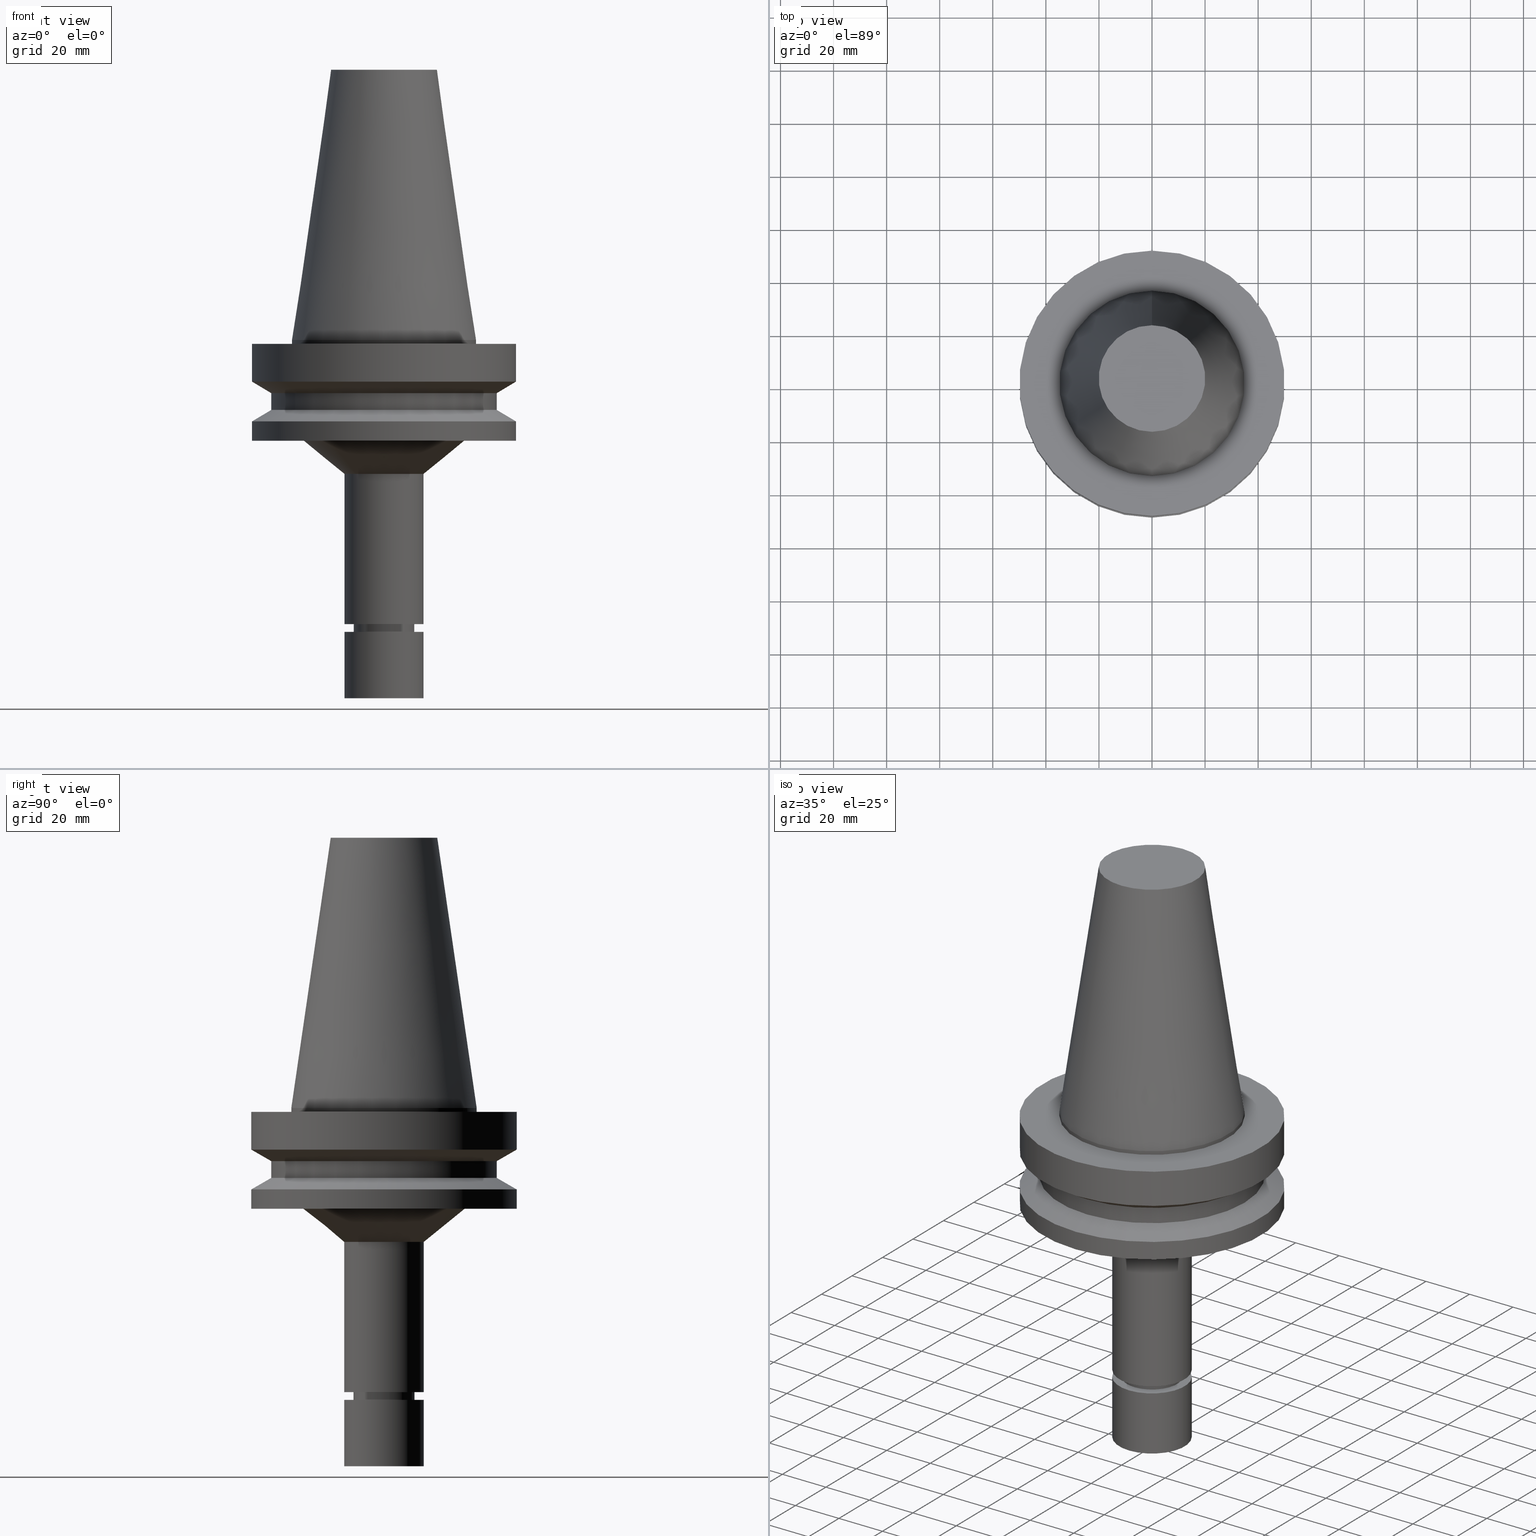
[diagram: canonical four-view strip — front | top / right | iso, engineering-drawing reading convention]
A machine part, canonical four-view strip (front | top / right | iso — engineering-drawing reading convention). The complete STEP part file that produces these views, byte-faithful:
ISO-10303-21;
HEADER;
FILE_DESCRIPTION((''),'1');
FILE_NAME('V:/90_\X2\53D65F9730C730FC30BF\X0\/00_\X2\6DE18DEF30C730FC30BF\X0\/ALL/BBT-BKUS\X2\FF76FF80FF9BFF78FF9E752852A05DE556F3\X0\201801/BBT50-MEGAER/BBT50-MEGAER16-135NL.stp','2018-02-02T07:52:08',(''),(''),'Spatial Interop R21 SP3','Kubotek KeyCreator 2011 V10.0.2 (22737)',' ');
FILE_SCHEMA(('automotive_design'));
ENDSEC;
DATA;
#1=MECHANICAL_DESIGN_GEOMETRIC_PRESENTATION_REPRESENTATION(' ',(#14,#15,#16,#17,#18,#19,#20,#21,#22,#23,#24,#25,#26,#27,#28,#29,#30,#31,#32,#33,#34,#35,#36,#37,#38,#39,#40,#41,#42,#43,#44,#45,#46,#47,#48,#49,#50,#51,#52,#53,#54,#55),#10);
#2=PRODUCT_DEFINITION_CONTEXT('',#56,'design');
#3=APPLICATION_PROTOCOL_DEFINITION('INTERNATIONAL STANDARD','automotive_design',1994,#56);
#4=PRODUCT_CATEGORY_RELATIONSHIP('NONE','NONE',#57,#58);
#5=SHAPE_DEFINITION_REPRESENTATION(#59,#60);
#6=PRODUCT_DEFINITION_CONTEXT('',#61,'design');
#7=APPLICATION_PROTOCOL_DEFINITION('INTERNATIONAL STANDARD','automotive_design',1994,#61);
#8=PRODUCT_CATEGORY_RELATIONSHIP('NONE','NONE',#62,#63);
#9=SHAPE_DEFINITION_REPRESENTATION(#64,#65);
#10= (GEOMETRIC_REPRESENTATION_CONTEXT(3)GLOBAL_UNCERTAINTY_ASSIGNED_CONTEXT((#68))GLOBAL_UNIT_ASSIGNED_CONTEXT((#70,#71,#72))REPRESENTATION_CONTEXT('NONE','WORKSPACE'));
#14=STYLED_ITEM('',(#74,#75),#76);
#15=STYLED_ITEM('',(#77,#78),#79);
#16=STYLED_ITEM('',(#80),#81);
#17=STYLED_ITEM('',(#82),#83);
#18=STYLED_ITEM('',(#84),#85);
#19=STYLED_ITEM('',(#86,#87),#88);
#20=STYLED_ITEM('',(#89),#90);
#21=STYLED_ITEM('',(#91,#92),#93);
#22=STYLED_ITEM('',(#94,#95),#96);
#23=STYLED_ITEM('',(#97,#98),#99);
#24=STYLED_ITEM('',(#100,#101),#102);
#25=STYLED_ITEM('',(#103,#104),#105);
#26=STYLED_ITEM('',(#106,#107),#108);
#27=STYLED_ITEM('',(#109),#110);
#28=STYLED_ITEM('',(#111,#112),#113);
#29=STYLED_ITEM('',(#114,#115),#116);
#30=STYLED_ITEM('',(#117,#118),#119);
#31=STYLED_ITEM('',(#120,#121),#122);
#32=STYLED_ITEM('',(#123),#124);
#33=STYLED_ITEM('',(#125),#126);
#34=STYLED_ITEM('',(#127,#128),#129);
#35=STYLED_ITEM('',(#130),#131);
#36=STYLED_ITEM('',(#132,#133),#134);
#37=STYLED_ITEM('',(#135,#136),#137);
#38=STYLED_ITEM('',(#138),#139);
#39=STYLED_ITEM('',(#140),#141);
#40=STYLED_ITEM('',(#142),#143);
#41=STYLED_ITEM('',(#144),#145);
#42=STYLED_ITEM('',(#146),#147);
#43=STYLED_ITEM('',(#148),#149);
#44=STYLED_ITEM('',(#150,#151),#152);
#45=STYLED_ITEM('',(#153,#154),#155);
#46=STYLED_ITEM('',(#156,#157),#158);
#47=STYLED_ITEM('',(#159),#160);
#48=STYLED_ITEM('',(#161,#162),#163);
#49=STYLED_ITEM('',(#164,#165),#166);
#50=STYLED_ITEM('',(#167),#168);
#51=STYLED_ITEM('',(#169,#170),#171);
#52=STYLED_ITEM('',(#172),#173);
#53=STYLED_ITEM('',(#174),#175);
#54=STYLED_ITEM('',(#176),#177);
#55=STYLED_ITEM('',(#178,#179),#180);
#56=APPLICATION_CONTEXT(' ');
#57=PRODUCT_CATEGORY('part','NONE');
#58=PRODUCT_RELATED_PRODUCT_CATEGORY('detail',' ',(#181));
#59=PRODUCT_DEFINITION_SHAPE('NONE','NONE',#182);
#60=ADVANCED_BREP_SHAPE_REPRESENTATION('Unnamed[1]',(#129,#183),#10);
#61=APPLICATION_CONTEXT(' ');
#62=PRODUCT_CATEGORY('part','NONE');
#63=PRODUCT_RELATED_PRODUCT_CATEGORY('detail',' ',(#184));
#64=PRODUCT_DEFINITION_SHAPE('NONE','NONE',#185);
#65=ADVANCED_BREP_SHAPE_REPRESENTATION('Unnamed[1]',(#105,#186),#10);
#68=UNCERTAINTY_MEASURE_WITH_UNIT(LENGTH_MEASURE(1.0E-006),#70,'','');
#70= (CONVERSION_BASED_UNIT('MILLIMETRE',#189)LENGTH_UNIT()NAMED_UNIT(#192));
#71= (NAMED_UNIT(#194)PLANE_ANGLE_UNIT()SI_UNIT($,.RADIAN.));
#72= (NAMED_UNIT(#194)SOLID_ANGLE_UNIT()SI_UNIT($,.STERADIAN.));
#74=PRESENTATION_STYLE_ASSIGNMENT((#200));
#75=PRESENTATION_STYLE_ASSIGNMENT((#201));
#76=ADVANCED_FACE('Unnamed[1]',(#202),#203,.T.);
#77=PRESENTATION_STYLE_ASSIGNMENT((#204));
#78=PRESENTATION_STYLE_ASSIGNMENT((#205));
#79=ADVANCED_FACE('Unnamed[1]',(#206,#207),#208,.T.);
#80=PRESENTATION_STYLE_ASSIGNMENT((#209));
#81=EDGE_CURVE('Unnamed[1]',#210,#210,#211,.T.);
#82=PRESENTATION_STYLE_ASSIGNMENT((#212));
#83=EDGE_CURVE('Unnamed[1]',#213,#213,#214,.T.);
#84=PRESENTATION_STYLE_ASSIGNMENT((#215));
#85=EDGE_CURVE('Unnamed[1]',#216,#216,#217,.T.);
#86=PRESENTATION_STYLE_ASSIGNMENT((#218));
#87=PRESENTATION_STYLE_ASSIGNMENT((#219));
#88=ADVANCED_FACE('Unnamed[1]',(#220,#221),#222,.T.);
#89=PRESENTATION_STYLE_ASSIGNMENT((#223));
#90=EDGE_CURVE('Unnamed[1]',#224,#224,#225,.T.);
#91=PRESENTATION_STYLE_ASSIGNMENT((#226));
#92=PRESENTATION_STYLE_ASSIGNMENT((#227));
#93=ADVANCED_FACE('Unnamed[1]',(#228,#229),#230,.T.);
#94=PRESENTATION_STYLE_ASSIGNMENT((#231));
#95=PRESENTATION_STYLE_ASSIGNMENT((#232));
#96=ADVANCED_FACE('Unnamed[1]',(#233,#234),#235,.T.);
#97=PRESENTATION_STYLE_ASSIGNMENT((#236));
#98=PRESENTATION_STYLE_ASSIGNMENT((#237));
#99=ADVANCED_FACE('Unnamed[1]',(#238,#239),#240,.T.);
#100=PRESENTATION_STYLE_ASSIGNMENT((#241));
#101=PRESENTATION_STYLE_ASSIGNMENT((#242));
#102=ADVANCED_FACE('Unnamed[1]',(#243,#244),#245,.T.);
#103=PRESENTATION_STYLE_ASSIGNMENT((#246));
#104=PRESENTATION_STYLE_ASSIGNMENT((#247));
#105=MANIFOLD_SOLID_BREP('Unnamed[1]',#248);
#106=PRESENTATION_STYLE_ASSIGNMENT((#249));
#107=PRESENTATION_STYLE_ASSIGNMENT((#250));
#108=ADVANCED_FACE('Unnamed[1]',(#251),#252,.T.);
#109=PRESENTATION_STYLE_ASSIGNMENT((#253));
#110=EDGE_CURVE('Unnamed[1]',#254,#254,#255,.T.);
#111=PRESENTATION_STYLE_ASSIGNMENT((#256));
#112=PRESENTATION_STYLE_ASSIGNMENT((#257));
#113=ADVANCED_FACE('Unnamed[1]',(#258,#259),#260,.T.);
#114=PRESENTATION_STYLE_ASSIGNMENT((#261));
#115=PRESENTATION_STYLE_ASSIGNMENT((#262));
#116=ADVANCED_FACE('Unnamed[1]',(#263,#264),#265,.T.);
#117=PRESENTATION_STYLE_ASSIGNMENT((#266));
#118=PRESENTATION_STYLE_ASSIGNMENT((#267));
#119=ADVANCED_FACE('Unnamed[1]',(#268,#269),#270,.T.);
#120=PRESENTATION_STYLE_ASSIGNMENT((#271));
#121=PRESENTATION_STYLE_ASSIGNMENT((#272));
#122=ADVANCED_FACE('Unnamed[1]',(#273,#274),#275,.T.);
#123=PRESENTATION_STYLE_ASSIGNMENT((#276));
#124=EDGE_CURVE('Unnamed[1]',#277,#277,#278,.T.);
#125=PRESENTATION_STYLE_ASSIGNMENT((#279));
#126=EDGE_CURVE('Unnamed[1]',#280,#280,#281,.T.);
#127=PRESENTATION_STYLE_ASSIGNMENT((#282));
#128=PRESENTATION_STYLE_ASSIGNMENT((#283));
#129=MANIFOLD_SOLID_BREP('Unnamed[1]',#284);
#130=PRESENTATION_STYLE_ASSIGNMENT((#285));
#131=EDGE_CURVE('Unnamed[1]',#286,#286,#287,.T.);
#132=PRESENTATION_STYLE_ASSIGNMENT((#288));
#133=PRESENTATION_STYLE_ASSIGNMENT((#289));
#134=ADVANCED_FACE('Unnamed[1]',(#290),#291,.T.);
#135=PRESENTATION_STYLE_ASSIGNMENT((#292));
#136=PRESENTATION_STYLE_ASSIGNMENT((#293));
#137=ADVANCED_FACE('Unnamed[1]',(#294,#295),#296,.T.);
#138=PRESENTATION_STYLE_ASSIGNMENT((#297));
#139=EDGE_CURVE('Unnamed[1]',#298,#298,#299,.T.);
#140=PRESENTATION_STYLE_ASSIGNMENT((#300));
#141=EDGE_CURVE('Unnamed[1]',#301,#301,#302,.T.);
#142=PRESENTATION_STYLE_ASSIGNMENT((#303));
#143=EDGE_CURVE('Unnamed[1]',#304,#304,#305,.T.);
#144=PRESENTATION_STYLE_ASSIGNMENT((#306));
#145=EDGE_CURVE('Unnamed[1]',#307,#307,#308,.T.);
#146=PRESENTATION_STYLE_ASSIGNMENT((#309));
#147=EDGE_CURVE('Unnamed[1]',#310,#310,#311,.T.);
#148=PRESENTATION_STYLE_ASSIGNMENT((#312));
#149=EDGE_CURVE('Unnamed[1]',#313,#313,#314,.T.);
#150=PRESENTATION_STYLE_ASSIGNMENT((#315));
#151=PRESENTATION_STYLE_ASSIGNMENT((#316));
#152=ADVANCED_FACE('Unnamed[1]',(#317,#318),#319,.T.);
#153=PRESENTATION_STYLE_ASSIGNMENT((#320));
#154=PRESENTATION_STYLE_ASSIGNMENT((#321));
#155=ADVANCED_FACE('Unnamed[1]',(#322),#323,.T.);
#156=PRESENTATION_STYLE_ASSIGNMENT((#324));
#157=PRESENTATION_STYLE_ASSIGNMENT((#325));
#158=ADVANCED_FACE('Unnamed[1]',(#326,#327),#328,.T.);
#159=PRESENTATION_STYLE_ASSIGNMENT((#329));
#160=EDGE_CURVE('Unnamed[1]',#330,#330,#331,.T.);
#161=PRESENTATION_STYLE_ASSIGNMENT((#332));
#162=PRESENTATION_STYLE_ASSIGNMENT((#333));
#163=ADVANCED_FACE('Unnamed[1]',(#334,#335),#336,.T.);
#164=PRESENTATION_STYLE_ASSIGNMENT((#337));
#165=PRESENTATION_STYLE_ASSIGNMENT((#338));
#166=ADVANCED_FACE('Unnamed[1]',(#339,#340),#341,.T.);
#167=PRESENTATION_STYLE_ASSIGNMENT((#342));
#168=EDGE_CURVE('Unnamed[1]',#343,#343,#344,.T.);
#169=PRESENTATION_STYLE_ASSIGNMENT((#345));
#170=PRESENTATION_STYLE_ASSIGNMENT((#346));
#171=ADVANCED_FACE('Unnamed[1]',(#347,#348),#349,.T.);
#172=PRESENTATION_STYLE_ASSIGNMENT((#350));
#173=EDGE_CURVE('Unnamed[1]',#351,#351,#352,.T.);
#174=PRESENTATION_STYLE_ASSIGNMENT((#353));
#175=EDGE_CURVE('Unnamed[1]',#354,#354,#355,.T.);
#176=PRESENTATION_STYLE_ASSIGNMENT((#356));
#177=EDGE_CURVE('Unnamed[1]',#357,#357,#358,.T.);
#178=PRESENTATION_STYLE_ASSIGNMENT((#359));
#179=PRESENTATION_STYLE_ASSIGNMENT((#360));
#180=ADVANCED_FACE('Unnamed[1]',(#361,#362),#363,.T.);
#181=PRODUCT('Unnamed[1]','Unnamed[1]','PART-Unnamed[1]-DESC',(#364));
#182=PRODUCT_DEFINITION('NONE','NONE',#365,#2);
#183=AXIS2_PLACEMENT_3D('',#366,#367,#368);
#184=PRODUCT('Unnamed[1]','Unnamed[1]','PART-Unnamed[1]-DESC',(#369));
#185=PRODUCT_DEFINITION('NONE','NONE',#370,#6);
#186=AXIS2_PLACEMENT_3D('',#371,#372,#373);
#189=LENGTH_MEASURE_WITH_UNIT(LENGTH_MEASURE(1.0),#374);
#192=DIMENSIONAL_EXPONENTS(1.0,0.0,0.0,0.0,0.0,0.0,0.0);
#194=DIMENSIONAL_EXPONENTS(0.0,0.0,0.0,0.0,0.0,0.0,0.0);
#200=SURFACE_STYLE_USAGE(.BOTH.,#375);
#201=CURVE_STYLE('',#376,POSITIVE_LENGTH_MEASURE(1000.0),#377);
#202=FACE_OUTER_BOUND('',#378,.T.);
#203=PLANE('',#379);
#204=SURFACE_STYLE_USAGE(.BOTH.,#380);
#205=CURVE_STYLE('',#381,POSITIVE_LENGTH_MEASURE(1000.0),#382);
#206=FACE_BOUND('',#383,.T.);
#207=FACE_BOUND('',#384,.T.);
#208=CYLINDRICAL_SURFACE('',#385,15.0000000000002);
#209=CURVE_STYLE('',#386,POSITIVE_LENGTH_MEASURE(1000.0),#387);
#210=VERTEX_POINT('',#388);
#211=CIRCLE('',#389,50.0);
#212=CURVE_STYLE('',#390,POSITIVE_LENGTH_MEASURE(1000.0),#391);
#213=VERTEX_POINT('',#392);
#214=CIRCLE('',#393,34.925);
#215=CURVE_STYLE('',#394,POSITIVE_LENGTH_MEASURE(1000.0),#395);
#216=VERTEX_POINT('',#396);
#217=CIRCLE('',#397,20.0791666651884);
#218=SURFACE_STYLE_USAGE(.BOTH.,#398);
#219=CURVE_STYLE('',#399,POSITIVE_LENGTH_MEASURE(1000.0),#400);
#220=FACE_BOUND('',#401,.T.);
#221=FACE_BOUND('',#402,.T.);
#222=CYLINDRICAL_SURFACE('',#403,34.925);
#223=CURVE_STYLE('',#404,POSITIVE_LENGTH_MEASURE(1000.0),#405);
#224=VERTEX_POINT('',#406);
#225=CIRCLE('',#407,50.0);
#226=SURFACE_STYLE_USAGE(.BOTH.,#408);
#227=CURVE_STYLE('',#409,POSITIVE_LENGTH_MEASURE(1000.0),#410);
#228=FACE_BOUND('',#411,.T.);
#229=FACE_BOUND('',#412,.T.);
#230=CONICAL_SURFACE('',#413,10.4499999999999,0.523598775598224);
#231=SURFACE_STYLE_USAGE(.BOTH.,#414);
#232=CURVE_STYLE('',#415,POSITIVE_LENGTH_MEASURE(1000.0),#416);
#233=FACE_BOUND('',#417,.T.);
#234=FACE_BOUND('',#418,.T.);
#235=CYLINDRICAL_SURFACE('',#419,15.0);
#236=SURFACE_STYLE_USAGE(.BOTH.,#420);
#237=CURVE_STYLE('',#421,POSITIVE_LENGTH_MEASURE(1000.0),#422);
#238=FACE_BOUND('',#423,.T.);
#239=FACE_BOUND('',#424,.T.);
#240=CYLINDRICAL_SURFACE('',#425,11.0000000000001);
#241=SURFACE_STYLE_USAGE(.BOTH.,#426);
#242=CURVE_STYLE('',#427,POSITIVE_LENGTH_MEASURE(1000.0),#428);
#243=FACE_BOUND('',#429,.T.);
#244=FACE_BOUND('',#430,.T.);
#245=CYLINDRICAL_SURFACE('',#431,42.5);
#246=SURFACE_STYLE_USAGE(.BOTH.,#432);
#247=CURVE_STYLE('',#433,POSITIVE_LENGTH_MEASURE(1000.0),#434);
#248=CLOSED_SHELL('',(#134,#108,#96));
#249=SURFACE_STYLE_USAGE(.BOTH.,#435);
#250=CURVE_STYLE('',#436,POSITIVE_LENGTH_MEASURE(1000.0),#437);
#251=FACE_OUTER_BOUND('',#438,.T.);
#252=PLANE('',#439);
#253=CURVE_STYLE('',#440,POSITIVE_LENGTH_MEASURE(1000.0),#441);
#254=VERTEX_POINT('',#442);
#255=CIRCLE('',#443,15.0000000000002);
#256=SURFACE_STYLE_USAGE(.BOTH.,#444);
#257=CURVE_STYLE('',#445,POSITIVE_LENGTH_MEASURE(1000.0),#446);
#258=FACE_BOUND('',#447,.T.);
#259=FACE_BOUND('',#448,.T.);
#260=CONICAL_SURFACE('',#449,22.6818898842099,0.889162048815192);
#261=SURFACE_STYLE_USAGE(.BOTH.,#450);
#262=CURVE_STYLE('',#451,POSITIVE_LENGTH_MEASURE(1000.0),#452);
#263=FACE_BOUND('',#453,.T.);
#264=FACE_BOUND('',#454,.T.);
#265=CYLINDRICAL_SURFACE('',#455,11.4999999999964);
#266=SURFACE_STYLE_USAGE(.BOTH.,#456);
#267=CURVE_STYLE('',#457,POSITIVE_LENGTH_MEASURE(1000.0),#458);
#268=FACE_BOUND('',#459,.T.);
#269=FACE_BOUND('',#460,.T.);
#270=CONICAL_SURFACE('',#461,27.5020833325942,0.144812498253157);
#271=SURFACE_STYLE_USAGE(.BOTH.,#462);
#272=CURVE_STYLE('',#463,POSITIVE_LENGTH_MEASURE(1000.0),#464);
#273=FACE_BOUND('',#465,.T.);
#274=FACE_BOUND('',#466,.T.);
#275=CONICAL_SURFACE('',#467,46.25,1.04719755108882);
#276=CURVE_STYLE('',#468,POSITIVE_LENGTH_MEASURE(1000.0),#469);
#277=VERTEX_POINT('',#470);
#278=CIRCLE('',#471,50.0);
#279=CURVE_STYLE('',#472,POSITIVE_LENGTH_MEASURE(1000.0),#473);
#280=VERTEX_POINT('',#474);
#281=CIRCLE('',#475,9.89999999999961);
#282=SURFACE_STYLE_USAGE(.BOTH.,#476);
#283=CURVE_STYLE('',#477,POSITIVE_LENGTH_MEASURE(1000.0),#478);
#284=CLOSED_SHELL('',(#76,#93,#99,#158,#116,#163,#79,#113,#171,#180,#122,#102,#137,#166,#152,#88,#119,#155));
#285=CURVE_STYLE('',#479,POSITIVE_LENGTH_MEASURE(1000.0),#480);
#286=VERTEX_POINT('',#481);
#287=CIRCLE('',#482,42.5);
#288=SURFACE_STYLE_USAGE(.BOTH.,#483);
#289=CURVE_STYLE('',#484,POSITIVE_LENGTH_MEASURE(1000.0),#485);
#290=FACE_OUTER_BOUND('',#486,.T.);
#291=PLANE('',#487);
#292=SURFACE_STYLE_USAGE(.BOTH.,#488);
#293=CURVE_STYLE('',#489,POSITIVE_LENGTH_MEASURE(1000.0),#490);
#294=FACE_BOUND('',#491,.T.);
#295=FACE_BOUND('',#492,.T.);
#296=CONICAL_SURFACE('',#493,46.25,1.04719755108882);
#297=CURVE_STYLE('',#494,POSITIVE_LENGTH_MEASURE(1000.0),#495);
#298=VERTEX_POINT('',#496);
#299=CIRCLE('',#497,50.0);
#300=CURVE_STYLE('',#498,POSITIVE_LENGTH_MEASURE(1000.0),#499);
#301=VERTEX_POINT('',#500);
#302=CIRCLE('',#501,15.0000000000001);
#303=CURVE_STYLE('',#502,POSITIVE_LENGTH_MEASURE(1000.0),#503);
#304=VERTEX_POINT('',#504);
#305=CIRCLE('',#505,42.5);
#306=CURVE_STYLE('',#506,POSITIVE_LENGTH_MEASURE(1000.0),#507);
#307=VERTEX_POINT('',#508);
#308=CIRCLE('',#509,11.0000000000002);
#309=CURVE_STYLE('',#510,POSITIVE_LENGTH_MEASURE(1000.0),#511);
#310=VERTEX_POINT('',#512);
#311=CIRCLE('',#513,11.4999999999907);
#312=CURVE_STYLE('',#514,POSITIVE_LENGTH_MEASURE(1000.0),#515);
#313=VERTEX_POINT('',#516);
#314=CIRCLE('',#517,34.925);
#315=SURFACE_STYLE_USAGE(.BOTH.,#518);
#316=CURVE_STYLE('',#519,POSITIVE_LENGTH_MEASURE(1000.0),#520);
#317=FACE_BOUND('',#521,.T.);
#318=FACE_OUTER_BOUND('',#522,.T.);
#319=PLANE('',#523);
#320=SURFACE_STYLE_USAGE(.BOTH.,#524);
#321=CURVE_STYLE('',#525,POSITIVE_LENGTH_MEASURE(1000.0),#526);
#322=FACE_OUTER_BOUND('',#527,.T.);
#323=PLANE('',#528);
#324=SURFACE_STYLE_USAGE(.BOTH.,#529);
#325=CURVE_STYLE('',#530,POSITIVE_LENGTH_MEASURE(1000.0),#531);
#326=FACE_BOUND('',#532,.T.);
#327=FACE_BOUND('',#533,.T.);
#328=CONICAL_SURFACE('',#534,11.250000000001,1.04719755118896);
#329=CURVE_STYLE('',#535,POSITIVE_LENGTH_MEASURE(1000.0),#536);
#330=VERTEX_POINT('',#537);
#331=CIRCLE('',#538,15.0000000000001);
#332=SURFACE_STYLE_USAGE(.BOTH.,#539);
#333=CURVE_STYLE('',#540,POSITIVE_LENGTH_MEASURE(1000.0),#541);
#334=FACE_OUTER_BOUND('',#542,.T.);
#335=FACE_BOUND('',#543,.T.);
#336=PLANE('',#544);
#337=SURFACE_STYLE_USAGE(.BOTH.,#545);
#338=CURVE_STYLE('',#546,POSITIVE_LENGTH_MEASURE(1000.0),#547);
#339=FACE_BOUND('',#548,.T.);
#340=FACE_BOUND('',#549,.T.);
#341=CYLINDRICAL_SURFACE('',#550,50.0);
#342=CURVE_STYLE('',#551,POSITIVE_LENGTH_MEASURE(1000.0),#552);
#343=VERTEX_POINT('',#553);
#344=CIRCLE('',#554,30.3637797684196);
#345=SURFACE_STYLE_USAGE(.BOTH.,#555);
#346=CURVE_STYLE('',#556,POSITIVE_LENGTH_MEASURE(1000.0),#557);
#347=FACE_OUTER_BOUND('',#558,.T.);
#348=FACE_BOUND('',#559,.T.);
#349=PLANE('',#560);
#350=CURVE_STYLE('',#561,POSITIVE_LENGTH_MEASURE(1000.0),#562);
#351=VERTEX_POINT('',#563);
#352=CIRCLE('',#564,11.5000000000021);
#353=CURVE_STYLE('',#565,POSITIVE_LENGTH_MEASURE(1000.0),#566);
#354=VERTEX_POINT('',#567);
#355=CIRCLE('',#568,15.0);
#356=CURVE_STYLE('',#569,POSITIVE_LENGTH_MEASURE(1000.0),#570);
#357=VERTEX_POINT('',#571);
#358=CIRCLE('',#572,10.9999999999999);
#359=SURFACE_STYLE_USAGE(.BOTH.,#573);
#360=CURVE_STYLE('',#574,POSITIVE_LENGTH_MEASURE(1000.0),#575);
#361=FACE_BOUND('',#576,.T.);
#362=FACE_BOUND('',#577,.T.);
#363=CYLINDRICAL_SURFACE('',#578,50.0);
#364=PRODUCT_CONTEXT('',#56,'mechanical');
#365=PRODUCT_DEFINITION_FORMATION_WITH_SPECIFIED_SOURCE(' ','NONE',#181,.NOT_KNOWN.);
#366=CARTESIAN_POINT('',(0.0,0.0,0.0));
#367=DIRECTION('',(0.0,0.0,1.0));
#368=DIRECTION('',(1.0,0.0,0.0));
#369=PRODUCT_CONTEXT('',#61,'mechanical');
#370=PRODUCT_DEFINITION_FORMATION_WITH_SPECIFIED_SOURCE(' ','NONE',#184,.NOT_KNOWN.);
#371=CARTESIAN_POINT('',(0.0,0.0,0.0));
#372=DIRECTION('',(0.0,0.0,1.0));
#373=DIRECTION('',(1.0,0.0,0.0));
#374= (NAMED_UNIT(#192)LENGTH_UNIT()SI_UNIT(.MILLI.,.METRE.));
#375=SURFACE_SIDE_STYLE('',(#580));
#376=DRAUGHTING_PRE_DEFINED_CURVE_FONT('continuous');
#377=COLOUR_RGB('',0.0,1.0,0.0);
#378=EDGE_LOOP('',(#581));
#379=AXIS2_PLACEMENT_3D('',#582,#583,#584);
#380=SURFACE_SIDE_STYLE('',(#585));
#381=DRAUGHTING_PRE_DEFINED_CURVE_FONT('continuous');
#382=COLOUR_RGB('',0.0,1.0,0.0);
#383=EDGE_LOOP('',(#586));
#384=EDGE_LOOP('',(#587));
#385=AXIS2_PLACEMENT_3D('',#588,#589,#590);
#386=DRAUGHTING_PRE_DEFINED_CURVE_FONT('continuous');
#387=COLOUR_RGB('',0.0,1.0,0.0);
#388=CARTESIAN_POINT('',(9.61347737330674E-016,50.0,-15.7));
#389=AXIS2_PLACEMENT_3D('',#591,#592,#593);
#390=DRAUGHTING_PRE_DEFINED_CURVE_FONT('continuous');
#391=COLOUR_RGB('',0.0,1.0,0.0);
#392=CARTESIAN_POINT('',(9.18485099360511E-017,34.925,-1.5));
#393=AXIS2_PLACEMENT_3D('',#594,#595,#596);
#394=DRAUGHTING_PRE_DEFINED_CURVE_FONT('continuous');
#395=COLOUR_RGB('',0.0,1.0,0.0);
#396=CARTESIAN_POINT('',(-6.23345220766003E-015,20.0791666651884,101.8));
#397=AXIS2_PLACEMENT_3D('',#597,#598,#599);
#398=SURFACE_SIDE_STYLE('',(#600));
#399=DRAUGHTING_PRE_DEFINED_CURVE_FONT('continuous');
#400=COLOUR_RGB('',0.0,1.0,0.0);
#401=EDGE_LOOP('',(#601));
#402=EDGE_LOOP('',(#602));
#403=AXIS2_PLACEMENT_3D('',#603,#604,#605);
#404=DRAUGHTING_PRE_DEFINED_CURVE_FONT('continuous');
#405=COLOUR_RGB('',0.0,1.0,0.0);
#406=CARTESIAN_POINT('',(1.87983283669119E-015,50.0,-30.7000000000001));
#407=AXIS2_PLACEMENT_3D('',#606,#607,#608);
#408=SURFACE_SIDE_STYLE('',(#609));
#409=DRAUGHTING_PRE_DEFINED_CURVE_FONT('continuous');
#410=COLOUR_RGB('',0.0,1.0,0.0);
#411=EDGE_LOOP('',(#610));
#412=EDGE_LOOP('',(#611));
#413=AXIS2_PLACEMENT_3D('',#612,#613,#614);
#414=SURFACE_SIDE_STYLE('',(#615));
#415=DRAUGHTING_PRE_DEFINED_CURVE_FONT('continuous');
#416=COLOUR_RGB('',0.0,1.0,0.0);
#417=EDGE_LOOP('',(#616));
#418=EDGE_LOOP('',(#617));
#419=AXIS2_PLACEMENT_3D('',#618,#619,#620);
#420=SURFACE_SIDE_STYLE('',(#621));
#421=DRAUGHTING_PRE_DEFINED_CURVE_FONT('continuous');
#422=COLOUR_RGB('',0.0,1.0,0.0);
#423=EDGE_LOOP('',(#622));
#424=EDGE_LOOP('',(#623));
#425=AXIS2_PLACEMENT_3D('',#624,#625,#626);
#426=SURFACE_SIDE_STYLE('',(#627));
#427=DRAUGHTING_PRE_DEFINED_CURVE_FONT('continuous');
#428=COLOUR_RGB('',0.0,1.0,0.0);
#429=EDGE_LOOP('',(#628));
#430=EDGE_LOOP('',(#629));
#431=AXIS2_PLACEMENT_3D('',#630,#631,#632);
#432=SURFACE_SIDE_STYLE('',(#633));
#433=DRAUGHTING_PRE_DEFINED_CURVE_FONT('continuous');
#434=COLOUR_RGB('',0.0,1.0,0.0);
#435=SURFACE_SIDE_STYLE('',(#634));
#436=DRAUGHTING_PRE_DEFINED_CURVE_FONT('continuous');
#437=COLOUR_RGB('',0.0,1.0,0.0);
#438=EDGE_LOOP('',(#635));
#439=AXIS2_PLACEMENT_3D('',#636,#637,#638);
#440=DRAUGHTING_PRE_DEFINED_CURVE_FONT('continuous');
#441=COLOUR_RGB('',0.0,1.0,0.0);
#442=CARTESIAN_POINT('',(6.55798360943403E-015,15.0000000000002,-107.099999999999));
#443=AXIS2_PLACEMENT_3D('',#639,#640,#641);
#444=SURFACE_SIDE_STYLE('',(#642));
#445=DRAUGHTING_PRE_DEFINED_CURVE_FONT('continuous');
#446=COLOUR_RGB('',0.0,1.0,0.0);
#447=EDGE_LOOP('',(#643));
#448=EDGE_LOOP('',(#644));
#449=AXIS2_PLACEMENT_3D('',#645,#646,#647);
#450=SURFACE_SIDE_STYLE('',(#648));
#451=DRAUGHTING_PRE_DEFINED_CURVE_FONT('continuous');
#452=COLOUR_RGB('',0.0,1.0,0.0);
#453=EDGE_LOOP('',(#649));
#454=EDGE_LOOP('',(#650));
#455=AXIS2_PLACEMENT_3D('',#651,#652,#653);
#456=SURFACE_SIDE_STYLE('',(#654));
#457=DRAUGHTING_PRE_DEFINED_CURVE_FONT('continuous');
#458=COLOUR_RGB('',0.0,1.0,0.0);
#459=EDGE_LOOP('',(#655));
#460=EDGE_LOOP('',(#656));
#461=AXIS2_PLACEMENT_3D('',#657,#658,#659);
#462=SURFACE_SIDE_STYLE('',(#660));
#463=DRAUGHTING_PRE_DEFINED_CURVE_FONT('continuous');
#464=COLOUR_RGB('',0.0,1.0,0.0);
#465=EDGE_LOOP('',(#661));
#466=EDGE_LOOP('',(#662));
#467=AXIS2_PLACEMENT_3D('',#663,#664,#665);
#468=DRAUGHTING_PRE_DEFINED_CURVE_FONT('continuous');
#469=COLOUR_RGB('',0.0,1.0,0.0);
#470=CARTESIAN_POINT('',(9.18485099360509E-017,50.0,-1.49999999999999));
#471=AXIS2_PLACEMENT_3D('',#666,#667,#668);
#472=DRAUGHTING_PRE_DEFINED_CURVE_FONT('continuous');
#473=COLOUR_RGB('',0.0,1.0,0.0);
#474=CARTESIAN_POINT('',(7.72752130261974E-015,9.89999999999963,-126.199999999999));
#475=AXIS2_PLACEMENT_3D('',#669,#670,#671);
#476=SURFACE_SIDE_STYLE('',(#672));
#477=DRAUGHTING_PRE_DEFINED_CURVE_FONT('continuous');
#478=COLOUR_RGB('',0.0,1.0,0.0);
#479=DRAUGHTING_PRE_DEFINED_CURVE_FONT('continuous');
#480=COLOUR_RGB('',0.0,1.0,0.0);
#481=CARTESIAN_POINT('',(1.2264915470779E-015,42.5,-20.03012702));
#482=AXIS2_PLACEMENT_3D('',#673,#674,#675);
#483=SURFACE_SIDE_STYLE('',(#676));
#484=DRAUGHTING_PRE_DEFINED_CURVE_FONT('continuous');
#485=COLOUR_RGB('',0.0,1.0,0.0);
#486=EDGE_LOOP('',(#677));
#487=AXIS2_PLACEMENT_3D('',#678,#679,#680);
#488=SURFACE_SIDE_STYLE('',(#681));
#489=DRAUGHTING_PRE_DEFINED_CURVE_FONT('continuous');
#490=COLOUR_RGB('',0.0,1.0,0.0);
#491=EDGE_LOOP('',(#682));
#492=EDGE_LOOP('',(#683));
#493=AXIS2_PLACEMENT_3D('',#684,#685,#686);
#494=DRAUGHTING_PRE_DEFINED_CURVE_FONT('continuous');
#495=COLOUR_RGB('',0.0,1.0,0.0);
#496=CARTESIAN_POINT('',(2.32682891837996E-015,50.0,-37.9999999999998));
#497=AXIS2_PLACEMENT_3D('',#687,#688,#689);
#498=DRAUGHTING_PRE_DEFINED_CURVE_FONT('continuous');
#499=COLOUR_RGB('',0.0,1.0,0.0);
#500=CARTESIAN_POINT('',(6.73555739531044E-015,15.0000000000001,-110.0));
#501=AXIS2_PLACEMENT_3D('',#690,#691,#692);
#502=DRAUGHTING_PRE_DEFINED_CURVE_FONT('continuous');
#503=COLOUR_RGB('',0.0,1.0,0.0);
#504=CARTESIAN_POINT('',(1.61468902694397E-015,42.5,-26.3698729800001));
#505=AXIS2_PLACEMENT_3D('',#693,#694,#695);
#506=DRAUGHTING_PRE_DEFINED_CURVE_FONT('continuous');
#507=COLOUR_RGB('',0.0,1.0,0.0);
#508=CARTESIAN_POINT('',(7.61085802635992E-015,11.0000000000003,-124.294744111672));
#509=AXIS2_PLACEMENT_3D('',#696,#697,#698);
#510=DRAUGHTING_PRE_DEFINED_CURVE_FONT('continuous');
#511=COLOUR_RGB('',0.0,1.0,0.0);
#512=CARTESIAN_POINT('',(6.55798360943408E-015,11.4999999999907,-107.1));
#513=AXIS2_PLACEMENT_3D('',#699,#700,#701);
#514=DRAUGHTING_PRE_DEFINED_CURVE_FONT('continuous');
#515=COLOUR_RGB('',0.0,1.0,0.0);
#516=CARTESIAN_POINT('',(-4.30483861169435E-031,34.925,4.27707894602213E-015));
#517=AXIS2_PLACEMENT_3D('',#702,#703,#704);
#518=SURFACE_SIDE_STYLE('',(#705));
#519=DRAUGHTING_PRE_DEFINED_CURVE_FONT('continuous');
#520=COLOUR_RGB('',0.0,1.0,0.0);
#521=EDGE_LOOP('',(#706));
#522=EDGE_LOOP('',(#707));
#523=AXIS2_PLACEMENT_3D('',#708,#709,#710);
#524=SURFACE_SIDE_STYLE('',(#711));
#525=DRAUGHTING_PRE_DEFINED_CURVE_FONT('continuous');
#526=COLOUR_RGB('',0.0,1.0,0.0);
#527=EDGE_LOOP('',(#712));
#528=AXIS2_PLACEMENT_3D('',#713,#714,#715);
#529=SURFACE_SIDE_STYLE('',(#716));
#530=DRAUGHTING_PRE_DEFINED_CURVE_FONT('continuous');
#531=COLOUR_RGB('',0.0,1.0,0.0);
#532=EDGE_LOOP('',(#717));
#533=EDGE_LOOP('',(#718));
#534=AXIS2_PLACEMENT_3D('',#719,#720,#721);
#535=DRAUGHTING_PRE_DEFINED_CURVE_FONT('continuous');
#536=COLOUR_RGB('',0.0,1.0,0.0);
#537=CARTESIAN_POINT('',(3.09013157343733E-015,15.0000000000001,-50.4656783586712));
#538=AXIS2_PLACEMENT_3D('',#722,#723,#724);
#539=SURFACE_SIDE_STYLE('',(#725));
#540=DRAUGHTING_PRE_DEFINED_CURVE_FONT('continuous');
#541=COLOUR_RGB('',0.0,1.0,0.0);
#542=EDGE_LOOP('',(#726));
#543=EDGE_LOOP('',(#727));
#544=AXIS2_PLACEMENT_3D('',#728,#729,#730);
#545=SURFACE_SIDE_STYLE('',(#731));
#546=DRAUGHTING_PRE_DEFINED_CURVE_FONT('continuous');
#547=COLOUR_RGB('',0.0,1.0,0.0);
#548=EDGE_LOOP('',(#732));
#549=EDGE_LOOP('',(#733));
#550=AXIS2_PLACEMENT_3D('',#734,#735,#736);
#551=DRAUGHTING_PRE_DEFINED_CURVE_FONT('continuous');
#552=COLOUR_RGB('',0.0,1.0,0.0);
#553=CARTESIAN_POINT('',(2.32682891837996E-015,30.3637797684196,-37.9999999999998));
#554=AXIS2_PLACEMENT_3D('',#737,#738,#739);
#555=SURFACE_SIDE_STYLE('',(#740));
#556=DRAUGHTING_PRE_DEFINED_CURVE_FONT('continuous');
#557=COLOUR_RGB('',0.0,1.0,0.0);
#558=EDGE_LOOP('',(#741));
#559=EDGE_LOOP('',(#742));
#560=AXIS2_PLACEMENT_3D('',#743,#744,#745);
#561=DRAUGHTING_PRE_DEFINED_CURVE_FONT('continuous');
#562=COLOUR_RGB('',0.0,1.0,0.0);
#563=CARTESIAN_POINT('',(6.91382462919479E-015,11.5000000000021,-112.911324865397));
#564=AXIS2_PLACEMENT_3D('',#746,#747,#748);
#565=DRAUGHTING_PRE_DEFINED_CURVE_FONT('continuous');
#566=COLOUR_RGB('',0.0,1.0,0.0);
#567=CARTESIAN_POINT('',(8.26636589424463E-015,15.0,-135.0));
#568=AXIS2_PLACEMENT_3D('',#749,#750,#751);
#569=DRAUGHTING_PRE_DEFINED_CURVE_FONT('continuous');
#570=COLOUR_RGB('',0.0,1.0,0.0);
#571=CARTESIAN_POINT('',(6.93150088317393E-015,10.9999999999999,-113.199999999998));
#572=AXIS2_PLACEMENT_3D('',#752,#753,#754);
#573=SURFACE_SIDE_STYLE('',(#755));
#574=DRAUGHTING_PRE_DEFINED_CURVE_FONT('continuous');
#575=COLOUR_RGB('',0.0,1.0,0.0);
#576=EDGE_LOOP('',(#756));
#577=EDGE_LOOP('',(#757));
#578=AXIS2_PLACEMENT_3D('',#758,#759,#760);
#580=SURFACE_STYLE_FILL_AREA(#761);
#581=ORIENTED_EDGE('',*,*,#126,.F.);
#582=CARTESIAN_POINT('',(7.72752130261977E-015,4.94999999999982,-126.2));
#583=DIRECTION('',(6.12323399573677E-017,8.19425372825961E-014,-1.0));
#584=DIRECTION('',(5.02236045258797E-030,-1.0,-8.19425372825961E-014));
#585=SURFACE_STYLE_FILL_AREA(#762);
#586=ORIENTED_EDGE('',*,*,#160,.F.);
#587=ORIENTED_EDGE('',*,*,#110,.T.);
#588=CARTESIAN_POINT('',(4.82405759143568E-015,1.57819481686713E-014,-78.7828391793352));
#589=DIRECTION('',(-6.12323399573677E-017,-1.52619998477252E-017,1.0));
#590=DIRECTION('',(-5.76168069387795E-033,1.0,1.52619998477252E-017));
#591=CARTESIAN_POINT('',(9.61347737330675E-016,1.48191778867216E-014,-15.7));
#592=DIRECTION('',(-6.12323399573677E-017,-1.52619998477039E-017,1.0));
#593=DIRECTION('',(-5.76168069386964E-033,1.0,1.52619998477039E-017));
#594=CARTESIAN_POINT('',(9.18485099360515E-017,1.46024574888838E-014,-1.5));
#595=DIRECTION('',(-6.12323399573677E-017,-1.52619998477369E-017,1.0));
#596=DIRECTION('',(-5.76168069387914E-033,1.0,1.52619998477369E-017));
#597=CARTESIAN_POINT('',(-6.23345220766003E-015,1.30258929046129E-014,101.8));
#598=DIRECTION('',(-6.12323399573677E-017,-1.5261999847694E-017,1.0));
#599=DIRECTION('',(-5.76168069387341E-033,1.0,1.5261999847694E-017));
#600=SURFACE_STYLE_FILL_AREA(#763);
#601=ORIENTED_EDGE('',*,*,#149,.F.);
#602=ORIENTED_EDGE('',*,*,#83,.T.);
#603=CARTESIAN_POINT('',(4.59242549680257E-017,1.4591010988998E-014,-0.75));
#604=DIRECTION('',(-6.12323399573677E-017,-1.52619998477369E-017,1.0));
#605=DIRECTION('',(-5.76168069387914E-033,1.0,1.52619998477369E-017));
#606=CARTESIAN_POINT('',(1.87983283669119E-015,1.50481078844377E-014,-30.7000000000001));
#607=DIRECTION('',(-6.12323399573677E-017,-1.52619998477039E-017,1.0));
#608=DIRECTION('',(-5.76168069386964E-033,1.0,1.52619998477039E-017));
#609=SURFACE_STYLE_FILL_AREA(#764);
#610=ORIENTED_EDGE('',*,*,#145,.F.);
#611=ORIENTED_EDGE('',*,*,#126,.T.);
#612=CARTESIAN_POINT('',(7.66918966448983E-015,1.64910898623574E-014,-125.247372055835));
#613=DIRECTION('',(-6.12323399573677E-017,-1.52619998477528E-017,1.0));
#614=DIRECTION('',(-5.76168069387836E-033,1.0,1.52619998477528E-017));
#615=SURFACE_STYLE_FILL_AREA(#765);
#616=ORIENTED_EDGE('',*,*,#175,.F.);
#617=ORIENTED_EDGE('',*,*,#141,.T.);
#618=CARTESIAN_POINT('',(7.50096164477754E-015,1.64491594704596E-014,-122.5));
#619=DIRECTION('',(6.12323399573677E-017,1.52619998477336E-017,-1.0));
#620=DIRECTION('',(-5.76168069387474E-033,1.0,1.52619998477336E-017));
#621=SURFACE_STYLE_FILL_AREA(#766);
#622=ORIENTED_EDGE('',*,*,#177,.F.);
#623=ORIENTED_EDGE('',*,*,#145,.T.);
#624=CARTESIAN_POINT('',(7.27117945476692E-015,1.63918868633472E-014,-118.747372055835));
#625=DIRECTION('',(-6.12323399573677E-017,-1.52619998477449E-017,1.0));
#626=DIRECTION('',(-5.76168069387336E-033,1.0,1.52619998477449E-017));
#627=SURFACE_STYLE_FILL_AREA(#767);
#628=ORIENTED_EDGE('',*,*,#131,.F.);
#629=ORIENTED_EDGE('',*,*,#143,.T.);
#630=CARTESIAN_POINT('',(1.42059028701093E-015,1.49336428855797E-014,-23.2));
#631=DIRECTION('',(-6.12323399573677E-017,-1.52619998477571E-017,1.0));
#632=DIRECTION('',(-5.76168069387344E-033,1.0,1.52619998477571E-017));
#633=SURFACE_STYLE_FILL_AREA(#768);
#634=SURFACE_STYLE_FILL_AREA(#769);
#635=ORIENTED_EDGE('',*,*,#141,.F.);
#636=CARTESIAN_POINT('',(6.73555739531044E-015,7.50000000000005,-110.0));
#637=DIRECTION('',(-6.12323399573677E-017,-1.22464679914735E-016,1.0));
#638=DIRECTION('',(1.23259516440783E-032,-1.0,-1.22464679914735E-016));
#639=CARTESIAN_POINT('',(6.55798360943403E-015,1.62141246728045E-014,-107.099999999999));
#640=DIRECTION('',(-6.12323399573677E-017,-1.52619998477252E-017,1.0));
#641=DIRECTION('',(-5.76168069387793E-033,1.0,1.52619998477252E-017));
#642=SURFACE_STYLE_FILL_AREA(#770);
#643=ORIENTED_EDGE('',*,*,#168,.F.);
#644=ORIENTED_EDGE('',*,*,#160,.T.);
#645=CARTESIAN_POINT('',(2.70848024590864E-015,1.52546460739321E-014,-44.2328391793355));
#646=DIRECTION('',(-6.12323399573676E-017,-1.52619998477032E-017,1.0));
#647=DIRECTION('',(-5.76168069387256E-033,1.0,1.52619998477032E-017));
#648=SURFACE_STYLE_FILL_AREA(#771);
#649=ORIENTED_EDGE('',*,*,#147,.F.);
#650=ORIENTED_EDGE('',*,*,#173,.T.);
#651=CARTESIAN_POINT('',(6.73590411931443E-015,1.62584708924099E-014,-110.005662432699));
#652=DIRECTION('',(-6.12323399573677E-017,-1.52619998477115E-017,1.0));
#653=DIRECTION('',(-5.76168069387645E-033,1.0,1.52619998477115E-017));
#654=SURFACE_STYLE_FILL_AREA(#772);
#655=ORIENTED_EDGE('',*,*,#85,.F.);
#656=ORIENTED_EDGE('',*,*,#149,.T.);
#657=CARTESIAN_POINT('',(-3.11672610383001E-015,1.38027286968626E-014,50.9));
#658=DIRECTION('',(6.12323399573677E-017,1.52619998476919E-017,-1.0));
#659=DIRECTION('',(-5.76168069387379E-033,1.0,1.52619998476919E-017));
#660=SURFACE_STYLE_FILL_AREA(#773);
#661=ORIENTED_EDGE('',*,*,#143,.F.);
#662=ORIENTED_EDGE('',*,*,#90,.T.);
#663=CARTESIAN_POINT('',(1.74726093181758E-015,1.50150646854777E-014,-28.5349364900001));
#664=DIRECTION('',(6.12323399573677E-017,1.52619998477633E-017,-1.0));
#665=DIRECTION('',(-5.76168069387914E-033,1.0,1.52619998477633E-017));
#666=CARTESIAN_POINT('',(9.18485099360515E-017,1.46024574888838E-014,-1.5));
#667=DIRECTION('',(-6.12323399573677E-017,-1.52619998477039E-017,1.0));
#668=DIRECTION('',(-5.76168069386964E-033,1.0,1.52619998477039E-017));
#669=CARTESIAN_POINT('',(7.72752130261974E-015,1.65056288698962E-014,-126.199999999999));
#670=DIRECTION('',(-6.12323399573677E-017,-1.52619998477619E-017,1.0));
#671=DIRECTION('',(-5.76168069387045E-033,1.0,1.52619998477619E-017));
#672=SURFACE_STYLE_FILL_AREA(#774);
#673=CARTESIAN_POINT('',(1.2264915470779E-015,1.48852642846416E-014,-20.03012702));
#674=DIRECTION('',(-6.12323399573677E-017,-1.52619998477571E-017,1.0));
#675=DIRECTION('',(-5.76168069387344E-033,1.0,1.52619998477571E-017));
#676=SURFACE_STYLE_FILL_AREA(#775);
#677=ORIENTED_EDGE('',*,*,#175,.T.);
#678=CARTESIAN_POINT('',(8.26636589424463E-015,7.50000000000002,-135.0));
#679=DIRECTION('',(6.12323399573677E-017,1.22464679914735E-016,-1.0));
#680=DIRECTION('',(-1.23259516440783E-032,1.0,1.22464679914735E-016));
#681=SURFACE_STYLE_FILL_AREA(#776);
#682=ORIENTED_EDGE('',*,*,#81,.F.);
#683=ORIENTED_EDGE('',*,*,#131,.T.);
#684=CARTESIAN_POINT('',(1.09391964220429E-015,1.48522210856816E-014,-17.86506351));
#685=DIRECTION('',(-6.12323399573677E-017,-1.52619998477633E-017,1.0));
#686=DIRECTION('',(-5.76168069387914E-033,1.0,1.52619998477633E-017));
#687=CARTESIAN_POINT('',(2.32682891837996E-015,1.51595204833261E-014,-37.9999999999998));
#688=DIRECTION('',(-6.12323399573677E-017,-1.52619998477039E-017,1.0));
#689=DIRECTION('',(-5.76168069387682E-033,1.0,1.52619998477039E-017));
#690=CARTESIAN_POINT('',(6.73555739531044E-015,1.62583844723629E-014,-110.0));
#691=DIRECTION('',(6.12323399573677E-017,1.52619998477336E-017,-1.0));
#692=DIRECTION('',(-5.76168069387474E-033,1.0,1.52619998477336E-017));
#693=CARTESIAN_POINT('',(1.61468902694397E-015,1.49820214865177E-014,-26.3698729800001));
#694=DIRECTION('',(-6.12323399573677E-017,-1.52619998477571E-017,1.0));
#695=DIRECTION('',(-5.76168069387344E-033,1.0,1.52619998477571E-017));
#696=CARTESIAN_POINT('',(7.61085802635992E-015,1.64765508548187E-014,-124.294744111672));
#697=DIRECTION('',(-6.12323399573677E-017,-1.52619998477447E-017,1.0));
#698=DIRECTION('',(-5.76168069387326E-033,1.0,1.52619998477447E-017));
#699=CARTESIAN_POINT('',(6.55798360943408E-015,1.62141246728045E-014,-107.1));
#700=DIRECTION('',(-6.12323399573677E-017,-1.5261999847719E-017,1.0));
#701=DIRECTION('',(-5.7616806938715E-033,1.0,1.5261999847719E-017));
#702=CARTESIAN_POINT('',(-1.79707006884519E-046,1.45795644891122E-014,1.78548169845537E-030));
#703=DIRECTION('',(-6.12323399573677E-017,-1.52619998477369E-017,1.0));
#704=DIRECTION('',(-5.76168069387914E-033,1.0,1.52619998477369E-017));
#705=SURFACE_STYLE_FILL_AREA(#777);
#706=ORIENTED_EDGE('',*,*,#83,.F.);
#707=ORIENTED_EDGE('',*,*,#124,.T.);
#708=CARTESIAN_POINT('',(9.1848509936051E-017,42.4625,-1.49999999999999));
#709=DIRECTION('',(-6.12323399573677E-017,-1.22464679914735E-016,1.0));
#710=DIRECTION('',(-1.23259516440783E-032,1.0,1.22464679914735E-016));
#711=SURFACE_STYLE_FILL_AREA(#778);
#712=ORIENTED_EDGE('',*,*,#85,.T.);
#713=CARTESIAN_POINT('',(-6.23345220766003E-015,10.0395833325942,101.8));
#714=DIRECTION('',(-6.12323399573677E-017,-1.22464679914735E-016,1.0));
#715=DIRECTION('',(-1.23259516440783E-032,1.0,1.22464679914735E-016));
#716=SURFACE_STYLE_FILL_AREA(#779);
#717=ORIENTED_EDGE('',*,*,#173,.F.);
#718=ORIENTED_EDGE('',*,*,#177,.T.);
#719=CARTESIAN_POINT('',(6.92266275618436E-015,1.63050199919455E-014,-113.055662432698));
#720=DIRECTION('',(-6.12323399573677E-017,-1.526199984776E-017,1.0));
#721=DIRECTION('',(-5.76168069387552E-033,1.0,1.526199984776E-017));
#722=CARTESIAN_POINT('',(3.09013157343733E-015,1.5349771664538E-014,-50.4656783586712));
#723=DIRECTION('',(-6.12323399573677E-017,-1.52619998477253E-017,1.0));
#724=DIRECTION('',(-5.76168069387797E-033,1.0,1.52619998477253E-017));
#725=SURFACE_STYLE_FILL_AREA(#780);
#726=ORIENTED_EDGE('',*,*,#110,.F.);
#727=ORIENTED_EDGE('',*,*,#147,.T.);
#728=CARTESIAN_POINT('',(6.55798360943405E-015,13.2499999999955,-107.1));
#729=DIRECTION('',(6.12323399573677E-017,1.99074430692201E-013,-1.0));
#730=DIRECTION('',(1.21946203696951E-029,-1.0,-1.99074430692201E-013));
#731=SURFACE_STYLE_FILL_AREA(#781);
#732=ORIENTED_EDGE('',*,*,#124,.F.);
#733=ORIENTED_EDGE('',*,*,#81,.T.);
#734=CARTESIAN_POINT('',(5.26598123633363E-016,1.47108176878027E-014,-8.60000000000002));
#735=DIRECTION('',(-6.12323399573677E-017,-1.52619998477039E-017,1.0));
#736=DIRECTION('',(-5.76168069386964E-033,1.0,1.52619998477039E-017));
#737=CARTESIAN_POINT('',(2.32682891837996E-015,1.51595204833261E-014,-37.9999999999999));
#738=DIRECTION('',(-6.12323399573677E-017,-1.52619998477455E-017,1.0));
#739=DIRECTION('',(-5.76168069387284E-033,1.0,1.52619998477455E-017));
#740=SURFACE_STYLE_FILL_AREA(#782);
#741=ORIENTED_EDGE('',*,*,#139,.F.);
#742=ORIENTED_EDGE('',*,*,#168,.T.);
#743=CARTESIAN_POINT('',(2.32682891837996E-015,40.1818898842098,-37.9999999999998));
#744=DIRECTION('',(6.12323399573677E-017,3.74099577897704E-015,-1.0));
#745=DIRECTION('',(2.33897078048169E-031,-1.0,-3.74099577897704E-015));
#746=CARTESIAN_POINT('',(6.91382462919479E-015,1.63028171120153E-014,-112.911324865397));
#747=DIRECTION('',(-6.12323399573677E-017,-1.52619998477039E-017,1.0));
#748=DIRECTION('',(-5.7616806938658E-033,1.0,1.52619998477039E-017));
#749=CARTESIAN_POINT('',(8.26636589424463E-015,1.66399344685563E-014,-135.0));
#750=DIRECTION('',(6.12323399573677E-017,1.52619998477336E-017,-1.0));
#751=DIRECTION('',(-5.76168069387474E-033,1.0,1.52619998477336E-017));
#752=CARTESIAN_POINT('',(6.93150088317393E-015,1.63072228718757E-014,-113.199999999998));
#753=DIRECTION('',(-6.12323399573677E-017,-1.52619998477451E-017,1.0));
#754=DIRECTION('',(-5.76168069387753E-033,1.0,1.52619998477451E-017));
#755=SURFACE_STYLE_FILL_AREA(#783);
#756=ORIENTED_EDGE('',*,*,#90,.F.);
#757=ORIENTED_EDGE('',*,*,#139,.T.);
#758=CARTESIAN_POINT('',(2.10333087753558E-015,1.51038141838819E-014,-34.3499999999999));
#759=DIRECTION('',(-6.12323399573677E-017,-1.52619998477039E-017,1.0));
#760=DIRECTION('',(-5.76168069386964E-033,1.0,1.52619998477039E-017));
#761=FILL_AREA_STYLE('',(#784));
#762=FILL_AREA_STYLE('',(#785));
#763=FILL_AREA_STYLE('',(#786));
#764=FILL_AREA_STYLE('',(#787));
#765=FILL_AREA_STYLE('',(#788));
#766=FILL_AREA_STYLE('',(#789));
#767=FILL_AREA_STYLE('',(#790));
#768=FILL_AREA_STYLE('',(#791));
#769=FILL_AREA_STYLE('',(#792));
#770=FILL_AREA_STYLE('',(#793));
#771=FILL_AREA_STYLE('',(#794));
#772=FILL_AREA_STYLE('',(#795));
#773=FILL_AREA_STYLE('',(#796));
#774=FILL_AREA_STYLE('',(#797));
#775=FILL_AREA_STYLE('',(#798));
#776=FILL_AREA_STYLE('',(#799));
#777=FILL_AREA_STYLE('',(#800));
#778=FILL_AREA_STYLE('',(#801));
#779=FILL_AREA_STYLE('',(#802));
#780=FILL_AREA_STYLE('',(#803));
#781=FILL_AREA_STYLE('',(#804));
#782=FILL_AREA_STYLE('',(#805));
#783=FILL_AREA_STYLE('',(#806));
#784=FILL_AREA_STYLE_COLOUR('',#807);
#785=FILL_AREA_STYLE_COLOUR('',#808);
#786=FILL_AREA_STYLE_COLOUR('',#809);
#787=FILL_AREA_STYLE_COLOUR('',#810);
#788=FILL_AREA_STYLE_COLOUR('',#811);
#789=FILL_AREA_STYLE_COLOUR('',#812);
#790=FILL_AREA_STYLE_COLOUR('',#813);
#791=FILL_AREA_STYLE_COLOUR('',#814);
#792=FILL_AREA_STYLE_COLOUR('',#815);
#793=FILL_AREA_STYLE_COLOUR('',#816);
#794=FILL_AREA_STYLE_COLOUR('',#817);
#795=FILL_AREA_STYLE_COLOUR('',#818);
#796=FILL_AREA_STYLE_COLOUR('',#819);
#797=FILL_AREA_STYLE_COLOUR('',#820);
#798=FILL_AREA_STYLE_COLOUR('',#821);
#799=FILL_AREA_STYLE_COLOUR('',#822);
#800=FILL_AREA_STYLE_COLOUR('',#823);
#801=FILL_AREA_STYLE_COLOUR('',#824);
#802=FILL_AREA_STYLE_COLOUR('',#825);
#803=FILL_AREA_STYLE_COLOUR('',#826);
#804=FILL_AREA_STYLE_COLOUR('',#827);
#805=FILL_AREA_STYLE_COLOUR('',#828);
#806=FILL_AREA_STYLE_COLOUR('',#829);
#807=COLOUR_RGB('',0.0,1.0,0.0);
#808=COLOUR_RGB('',0.0,1.0,0.0);
#809=COLOUR_RGB('',0.0,1.0,0.0);
#810=COLOUR_RGB('',0.0,1.0,0.0);
#811=COLOUR_RGB('',0.0,1.0,0.0);
#812=COLOUR_RGB('',0.0,1.0,0.0);
#813=COLOUR_RGB('',0.0,1.0,0.0);
#814=COLOUR_RGB('',0.0,1.0,0.0);
#815=COLOUR_RGB('',0.0,1.0,0.0);
#816=COLOUR_RGB('',0.0,1.0,0.0);
#817=COLOUR_RGB('',0.0,1.0,0.0);
#818=COLOUR_RGB('',0.0,1.0,0.0);
#819=COLOUR_RGB('',0.0,1.0,0.0);
#820=COLOUR_RGB('',0.0,1.0,0.0);
#821=COLOUR_RGB('',0.0,1.0,0.0);
#822=COLOUR_RGB('',0.0,1.0,0.0);
#823=COLOUR_RGB('',0.0,1.0,0.0);
#824=COLOUR_RGB('',0.0,1.0,0.0);
#825=COLOUR_RGB('',0.0,1.0,0.0);
#826=COLOUR_RGB('',0.0,1.0,0.0);
#827=COLOUR_RGB('',0.0,1.0,0.0);
#828=COLOUR_RGB('',0.0,1.0,0.0);
#829=COLOUR_RGB('',0.0,1.0,0.0);
ENDSEC;
END-ISO-10303-21;
